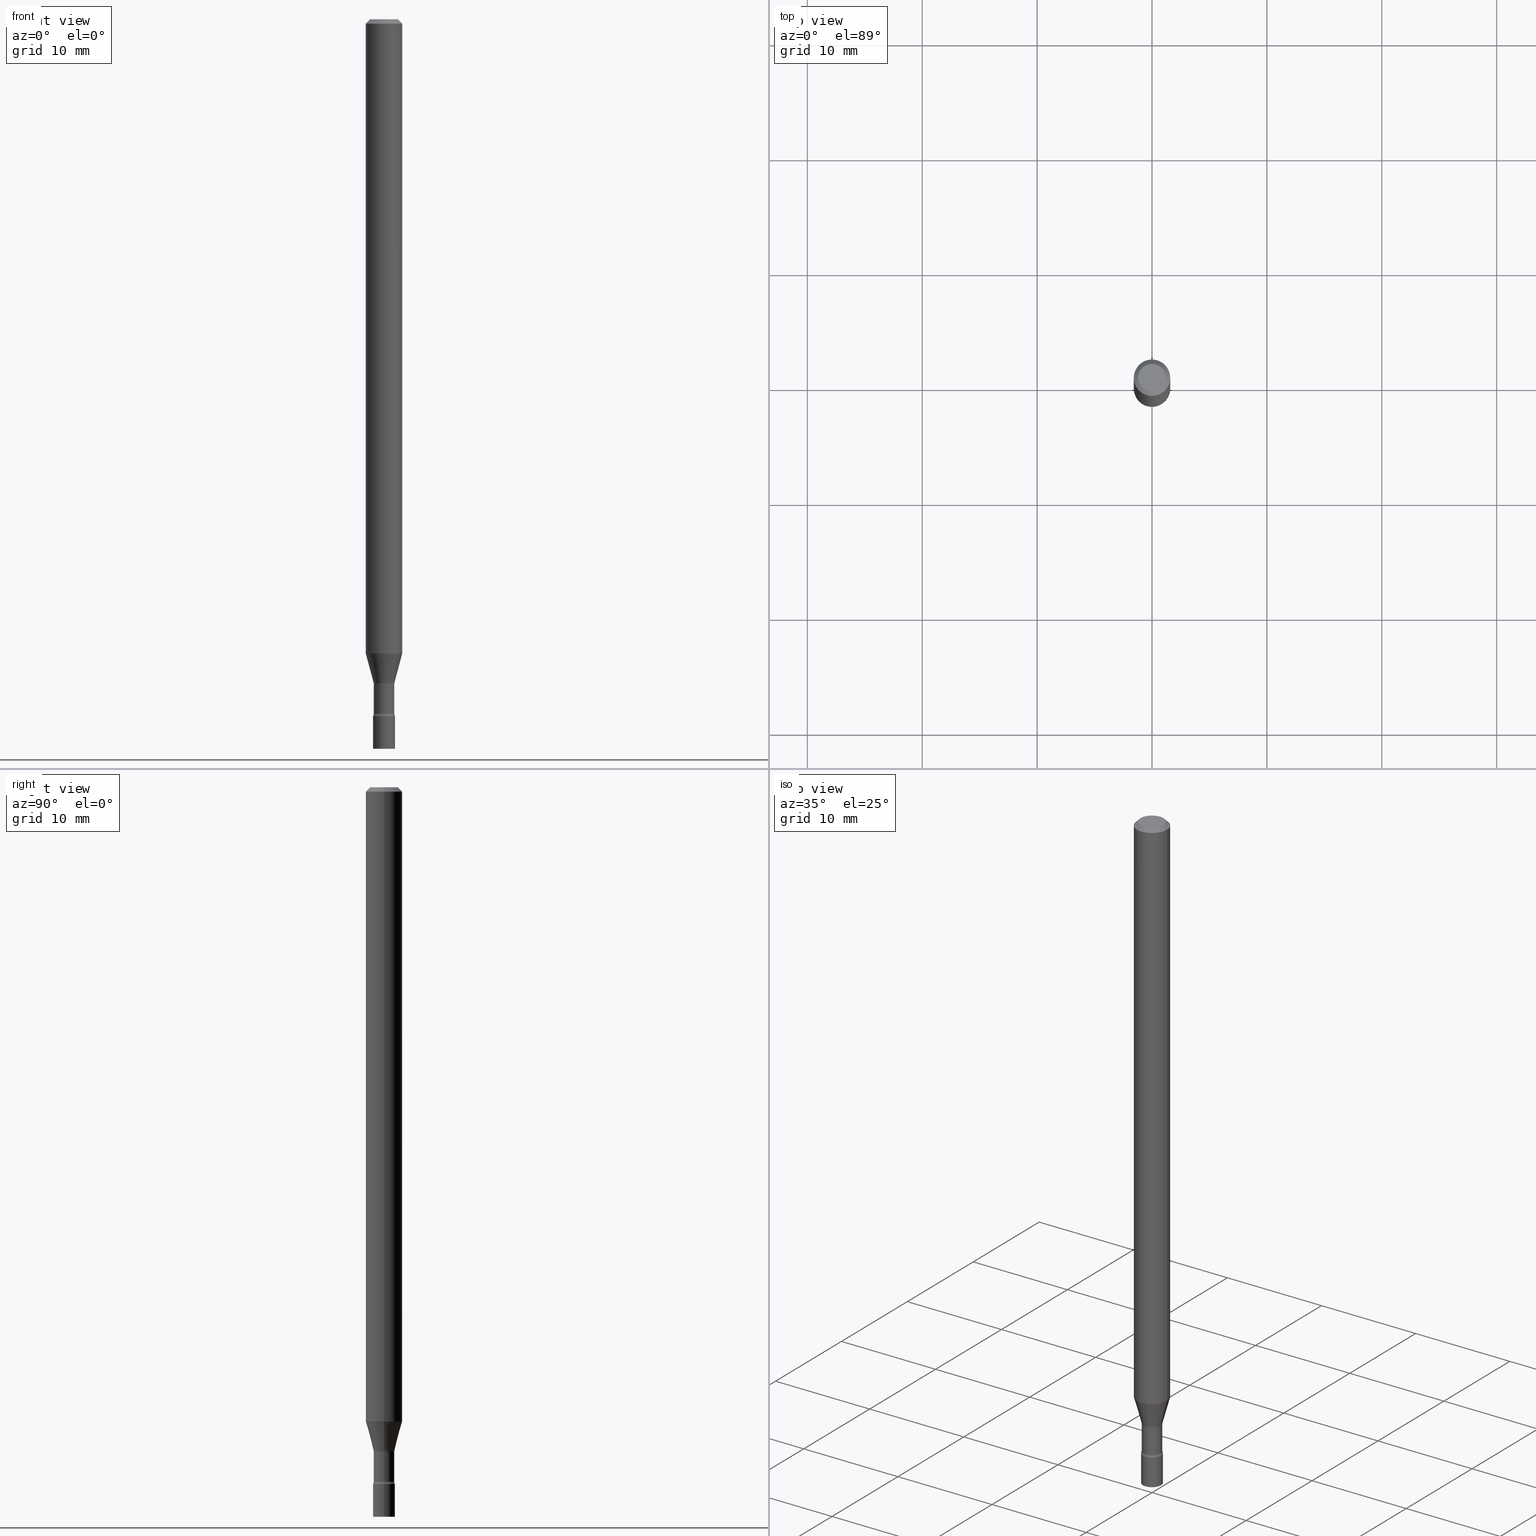
[diagram: canonical four-view strip — front | top / right | iso, engineering-drawing reading convention]
A machine part, canonical four-view strip (front | top / right | iso — engineering-drawing reading convention). The complete STEP part file that produces these views, byte-faithful:
ISO-10303-21;
HEADER;
FILE_DESCRIPTION (( 'STEP AP203' ),
    '1' );
FILE_NAME ('09711.STEP',
    '2024-03-09T01:07:42',
    ( '' ),
    ( '' ),
    'SwSTEP 2.0',
    'SolidWorks 2023',
    '' );
FILE_SCHEMA (( 'CONFIG_CONTROL_DESIGN' ));
ENDSEC;

DATA;
#1 = EDGE_LOOP ( 'NONE', ( #316, #468, #152, #80 ) ) ;
#2 = CIRCLE ( 'NONE', #319, 0.03525000000000000355 ) ;
#3 = AXIS2_PLACEMENT_3D ( 'NONE', #133, #485, #276 ) ;
#4 = CIRCLE ( 'NONE', #489, 0.03749999999999999861 ) ;
#5 = EDGE_CURVE ( 'NONE', #431, #34, #235, .T. ) ;
#6 = ORIENTED_EDGE ( 'NONE', *, *, #89, .F. ) ;
#7 = DIRECTION ( 'NONE',  ( 2.438088387897960049E-29, -3.491481338843145188E-15, -1.000000000000000000 ) ) ;
#8 = ORIENTED_EDGE ( 'NONE', *, *, #185, .T. ) ;
#9 = CIRCLE ( 'NONE', #187, 0.06250000000000000000 ) ;
#10 = LOCAL_TIME ( 20, 7, 42.00000000000000000, #193 ) ;
#11 = CC_DESIGN_PERSON_AND_ORGANIZATION_ASSIGNMENT ( #15, #317, ( #437 ) ) ;
#12 = COORDINATED_UNIVERSAL_TIME_OFFSET ( 5, 0, .BEHIND. ) ;
#13 = DIRECTION ( 'NONE',  ( 0.2588190451025211836, 1.565188264969622559E-15, 0.9659258262890679791 ) ) ;
#14 = ORIENTED_EDGE ( 'NONE', *, *, #42, .T. ) ;
#15 = PERSON_AND_ORGANIZATION ( #356, #18 ) ;
#16 = DIRECTION ( 'NONE',  ( -6.982962677686266711E-15, -1.000000000000000000, 3.491481338843145583E-15 ) ) ;
#17 = AXIS2_PLACEMENT_3D ( 'NONE', #140, #20, #491 ) ;
#18 = ORGANIZATION ( 'UNSPECIFIED', 'UNSPECIFIED', '' ) ;
#19 = ADVANCED_FACE ( 'NONE', ( #273 ), #368, .F. ) ;
#20 = DIRECTION ( 'NONE',  ( -2.445468806185136597E-29, 3.491481338843145583E-15, 1.000000000000000000 ) ) ;
#21 = FACE_OUTER_BOUND ( 'NONE', #465, .T. ) ;
#22 = FACE_OUTER_BOUND ( 'NONE', #335, .T. ) ;
#23 = CARTESIAN_POINT ( 'NONE',  ( 0.000000000000000000, 0.000000000000000000, 0.000000000000000000 ) ) ;
#24 = CARTESIAN_POINT ( 'NONE',  ( 5.558776806694110518E-29, -7.936460051454546286E-15, -2.273092501787273623 ) ) ;
#25 = FACE_OUTER_BOUND ( 'NONE', #166, .T. ) ;
#26 = ORIENTED_EDGE ( 'NONE', *, *, #255, .T. ) ;
#27 = DIRECTION ( 'NONE',  ( -2.445468806185136597E-29, 3.491481338843145583E-15, 1.000000000000000000 ) ) ;
#28 = PRODUCT_DEFINITION ( 'UNKNOWN', '', #112, #52 ) ;
#29 = AXIS2_PLACEMENT_3D ( 'NONE', #492, #16, #186 ) ;
#30 = APPROVAL_PERSON_ORGANIZATION ( #280, #473, #439 ) ;
#31 = DIRECTION ( 'NONE',  ( 1.000000000000000000, -6.982962677686265922E-15, 4.876176775795935793E-29 ) ) ;
#32 = PERSON_AND_ORGANIZATION_ROLE ( 'classification_officer' ) ;
#33 = DIRECTION ( 'NONE',  ( -2.445468806185136597E-29, 3.491481338843145583E-15, 1.000000000000000000 ) ) ;
#34 = VERTEX_POINT ( 'NONE', #82 ) ;
#35 = CARTESIAN_POINT ( 'NONE',  ( 0.03749999999999999861, -8.990564447521099944E-15, -2.500000000000000000 ) ) ;
#36 = ORIENTED_EDGE ( 'NONE', *, *, #395, .F. ) ;
#37 = EDGE_CURVE ( 'NONE', #363, #461, #93, .T. ) ;
#38 = CONICAL_SURFACE ( 'NONE', #259, 0.03576111260566390559, 0.2617993877991499074 ) ;
#39 = VERTEX_POINT ( 'NONE', #394 ) ;
#40 = VECTOR ( 'NONE', #329, 39.37007874015748143 ) ;
#41 = CARTESIAN_POINT ( 'NONE',  ( 5.314741307121726044E-29, -7.588042034174085279E-15, -2.173301615493748784 ) ) ;
#42 = EDGE_CURVE ( 'NONE', #268, #34, #44, .T. ) ;
#43 = EDGE_LOOP ( 'NONE', ( #380, #221, #158, #264 ) ) ;
#44 = LINE ( 'NONE', #170, #258 ) ;
#45 = DIRECTION ( 'NONE',  ( 1.000000000000000000, -6.982962677686268288E-15, 0.000000000000000000 ) ) ;
#46 = CIRCLE ( 'NONE', #325, 0.03749999999999999861 ) ;
#47 = DIRECTION ( 'NONE',  ( 1.000000000000000000, -6.982962677686262766E-15, 0.000000000000000000 ) ) ;
#48 = AXIS2_PLACEMENT_3D ( 'NONE', #456, #422, #384 ) ;
#49 = AXIS2_PLACEMENT_3D ( 'NONE', #480, #169, #396 ) ;
#50 = LENGTH_MEASURE_WITH_UNIT ( LENGTH_MEASURE( 0.02539999999999999897 ), #393 );
#51 = LINE ( 'NONE', #86, #328 ) ;
#52 = DESIGN_CONTEXT ( 'detailed design', #322, 'design' ) ;
#53 = FACE_OUTER_BOUND ( 'NONE', #305, .T. ) ;
#54 = APPROVAL_STATUS ( 'not_yet_approved' ) ;
#55 = PERSON_AND_ORGANIZATION_ROLE ( 'creator' ) ;
#56 = CIRCLE ( 'NONE', #29, 0.01500000000000001853 ) ;
#57 = DIRECTION ( 'NONE',  ( 7.105427357601001859E-15, 1.000000000000000000, -3.491481338843145583E-15 ) ) ;
#58 = EDGE_CURVE ( 'NONE', #386, #517, #46, .T. ) ;
#59 = CONICAL_SURFACE ( 'NONE', #84, 0.03576111260566390559, 0.2617993877991499074 ) ;
#60 = CARTESIAN_POINT ( 'NONE',  ( -0.04749999999999999362, 3.578768372314209027E-16, -2.891391092787141902E-17 ) ) ;
#61 = MANIFOLD_SOLID_BREP ( 'Body-Move/Copy2[2]', #126 ) ;
#62 = ORIENTED_EDGE ( 'NONE', *, *, #371, .F. ) ;
#63 = DIRECTION ( 'NONE',  ( -2.445468806185136597E-29, 3.491481338843145583E-15, 1.000000000000000000 ) ) ;
#64 = EDGE_CURVE ( 'NONE', #431, #348, #390, .T. ) ;
#65 = AXIS2_PLACEMENT_3D ( 'NONE', #263, #450, #419 ) ;
#66 = AXIS2_PLACEMENT_3D ( 'NONE', #188, #338, #504 ) ;
#67 = DIRECTION ( 'NONE',  ( -2.445468806185136877E-29, 3.491481338843145188E-15, 1.000000000000000000 ) ) ;
#68 = ORIENTED_EDGE ( 'NONE', *, *, #194, .T. ) ;
#69 = EDGE_LOOP ( 'NONE', ( #107, #256 ) ) ;
#70 = CYLINDRICAL_SURFACE ( 'NONE', #17, 0.03749999999999999861 ) ;
#71 = CARTESIAN_POINT ( 'NONE',  ( 0.03749999999999999861, -8.596027056231822783E-15, -2.387000000000000011 ) ) ;
#72 = ORIENTED_EDGE ( 'NONE', *, *, #218, .T. ) ;
#73 = EDGE_CURVE ( 'NONE', #161, #431, #357, .T. ) ;
#74 = DIRECTION ( 'NONE',  ( -1.000000000000000000, 7.105427357600974249E-15, 0.000000000000000000 ) ) ;
#75 = TOROIDAL_SURFACE ( 'NONE', #469, 0.05025000000000001688, 0.01500000000000003414 ) ;
#76 = ORIENTED_EDGE ( 'NONE', *, *, #371, .T. ) ;
#77 = CARTESIAN_POINT ( 'NONE',  ( 5.818010580909894890E-29, -8.306577176965639319E-15, -2.379098259685360262 ) ) ;
#78 = EDGE_LOOP ( 'NONE', ( #358, #270, #181, #257 ) ) ;
#79 = LINE ( 'NONE', #81, #442 ) ;
#80 = ORIENTED_EDGE ( 'NONE', *, *, #64, .F. ) ;
#81 = CARTESIAN_POINT ( 'NONE',  ( 0.03576111260566390559, -8.186178566092432225E-15, -2.273092501787273623 ) ) ;
#82 = CARTESIAN_POINT ( 'NONE',  ( -0.06250000000000000000, -3.376117917278303760E-15, -0.01500000000000003067 ) ) ;
#83 = AXIS2_PLACEMENT_3D ( 'NONE', #290, #145, #192 ) ;
#84 = AXIS2_PLACEMENT_3D ( 'NONE', #24, #410, #505 ) ;
#85 = CARTESIAN_POINT ( 'NONE',  ( -0.03749999999999999861, -8.264981125553189739E-15, -2.387000000000000011 ) ) ;
#86 = CARTESIAN_POINT ( 'NONE',  ( 0.03749999999999999861, -2.618611004132350016E-16, 1.828566290923475922E-30 ) ) ;
#87 = CC_DESIGN_PERSON_AND_ORGANIZATION_ASSIGNMENT ( #496, #32, ( #286 ) ) ;
#88 = FACE_OUTER_BOUND ( 'NONE', #302, .T. ) ;
#89 = EDGE_CURVE ( 'NONE', #453, #386, #51, .T. ) ;
#90 = DIRECTION ( 'NONE',  ( -2.445468806185136597E-29, 3.491481338843145583E-15, 1.000000000000000000 ) ) ;
#91 = CARTESIAN_POINT ( 'NONE',  ( -0.03524999999999998967, 2.504663143554352422E-16, -1.733924619314853852E-30 ) ) ;
#92 = ADVANCED_FACE ( 'NONE', ( #53 ), #320, .T. ) ;
#93 = CIRCLE ( 'NONE', #156, 0.03524999999999997580 ) ;
#94 = LOCAL_TIME ( 20, 7, 42.00000000000000000, #300 ) ;
#95 = CARTESIAN_POINT ( 'NONE',  ( 3.668203209277712094E-31, -5.237222008264728876E-17, -0.01500000000000003067 ) ) ;
#96 = CARTESIAN_POINT ( 'NONE',  ( 0.04749999999999999362, -4.035134999187579609E-16, -2.891391092786643933E-17 ) ) ;
#97 = TOROIDAL_SURFACE ( 'NONE', #48, 0.05024999999999999606, 0.01500000000000002200 ) ;
#98 = CALENDAR_DATE ( 2024, 8, 3 ) ;
#99 = DIRECTION ( 'NONE',  ( -2.445468806185136597E-29, 3.491481338843145583E-15, 1.000000000000000000 ) ) ;
#100 = CALENDAR_DATE ( 2024, 8, 3 ) ;
#101 = PLANE ( 'NONE',  #224 ) ;
#102 = ORIENTED_EDGE ( 'NONE', *, *, #284, .T. ) ;
#103 = ORIENTED_EDGE ( 'NONE', *, *, #326, .F. ) ;
#104 = CARTESIAN_POINT ( 'NONE',  ( 6.113672015462842613E-29, -8.728703347107864943E-15, -2.500000000000000000 ) ) ;
#105 = CARTESIAN_POINT ( 'NONE',  ( 0.03750000000000001943, -8.596027056231822783E-15, -2.387000000000000011 ) ) ;
#106 = VERTEX_POINT ( 'NONE', #519 ) ;
#107 = ORIENTED_EDGE ( 'NONE', *, *, #58, .T. ) ;
#108 = LINE ( 'NONE', #179, #40 ) ;
#109 = CYLINDRICAL_SURFACE ( 'NONE', #446, 0.03749999999999999861 ) ;
#110 = DIRECTION ( 'NONE',  ( -2.445468806185136597E-29, 3.491481338843145583E-15, 1.000000000000000000 ) ) ;
#111 = VECTOR ( 'NONE', #294, 39.37007874015748143 ) ;
#112 = PRODUCT_DEFINITION_FORMATION_WITH_SPECIFIED_SOURCE ( 'ANY', '', #437, .NOT_KNOWN. ) ;
#113 = FACE_OUTER_BOUND ( 'NONE', #490, .T. ) ;
#114 = ORIENTED_EDGE ( 'NONE', *, *, #451, .F. ) ;
#115 = CARTESIAN_POINT ( 'NONE',  ( -0.03576111260566390559, -7.413157443966016750E-15, -2.273092501787273623 ) ) ;
#116 = DIRECTION ( 'NONE',  ( 7.105427357601001859E-15, 1.000000000000000000, -3.491481338843145583E-15 ) ) ;
#117 = ORIENTED_EDGE ( 'NONE', *, *, #272, .T. ) ;
#118 = CIRCLE ( 'NONE', #314, 0.04749999999999999362 ) ;
#119 = ORIENTED_EDGE ( 'NONE', *, *, #388, .T. ) ;
#120 = DIRECTION ( 'NONE',  ( 1.000000000000000000, -6.982962677686259611E-15, 0.000000000000000000 ) ) ;
#121 = PLANE ( 'NONE',  #180 ) ;
#122 = DIRECTION ( 'NONE',  ( 1.000000000000000000, -6.982962677686266711E-15, 4.876176775795935793E-29 ) ) ;
#123 = DIRECTION ( 'NONE',  ( -2.445468806185136597E-29, 3.491481338843145583E-15, 1.000000000000000000 ) ) ;
#124 = DIRECTION ( 'NONE',  ( -2.445468806185136597E-29, 3.491481338843145583E-15, 1.000000000000000000 ) ) ;
#125 = CARTESIAN_POINT ( 'NONE',  ( -0.03576111260566390559, -7.682362063608012416E-15, -2.273092501787273623 ) ) ;
#126 = CLOSED_SHELL ( 'NONE', ( #408, #466, #19, #382, #92, #129, #432, #347, #243, #484, #214, #201, #157, #175 ) ) ;
#127 = DIRECTION ( 'NONE',  ( -2.445468806185136877E-29, 3.491481338843145188E-15, 1.000000000000000000 ) ) ;
#128 = CIRCLE ( 'NONE', #440, 0.01500000000000003587 ) ;
#129 = ADVANCED_FACE ( 'NONE', ( #344 ), #38, .T. ) ;
#130 = DIRECTION ( 'NONE',  ( -2.445468806185136597E-29, 3.491481338843145583E-15, 1.000000000000000000 ) ) ;
#131 = EDGE_CURVE ( 'NONE', #372, #106, #2, .T. ) ;
#132 = VERTEX_POINT ( 'NONE', #507 ) ;
#133 = CARTESIAN_POINT ( 'NONE',  ( 0.000000000000000000, 0.000000000000000000, 0.000000000000000000 ) ) ;
#134 = ORIENTED_EDGE ( 'NONE', *, *, #222, .T. ) ;
#135 = PLANE ( 'NONE',  #178 ) ;
#136 = DIRECTION ( 'NONE',  ( 1.000000000000000000, -6.982962677686268288E-15, 0.000000000000000000 ) ) ;
#137 = FACE_OUTER_BOUND ( 'NONE', #1, .T. ) ;
#138 = PERSON_AND_ORGANIZATION ( #356, #18 ) ;
#139 = APPROVAL ( #337, 'UNSPECIFIED' ) ;
#140 = CARTESIAN_POINT ( 'NONE',  ( 0.000000000000000000, 0.000000000000000000, 0.000000000000000000 ) ) ;
#141 = ORIENTED_EDGE ( 'NONE', *, *, #194, .F. ) ;
#142 = CARTESIAN_POINT ( 'NONE',  ( 0.06250000000000000000, -4.811533449433680977E-16, -0.01500000000000003067 ) ) ;
#143 = AXIS2_PLACEMENT_3D ( 'NONE', #327, #369, #373 ) ;
#144 = CC_DESIGN_APPROVAL ( #473, ( #28 ) ) ;
#145 = DIRECTION ( 'NONE',  ( -2.445468806185136597E-29, 3.491481338843145583E-15, 1.000000000000000000 ) ) ;
#146 = ORIENTED_EDGE ( 'NONE', *, *, #436, .F. ) ;
#147 = CARTESIAN_POINT ( 'NONE',  ( -0.06250000000000000000, -7.143952824324022663E-15, -2.173301615493748784 ) ) ;
#148 = CARTESIAN_POINT ( 'NONE',  ( 5.558776806694110518E-29, -7.936460051454546286E-15, -2.273092501787273623 ) ) ;
#149 = PERSON_AND_ORGANIZATION_ROLE ( 'design_supplier' ) ;
#150 = CYLINDRICAL_SURFACE ( 'NONE', #427, 0.06250000000000000000 ) ;
#151 = EDGE_LOOP ( 'NONE', ( #230, #414, #164, #289 ) ) ;
#152 = ORIENTED_EDGE ( 'NONE', *, *, #518, .T. ) ;
#153 = DIRECTION ( 'NONE',  ( -2.445468806185136597E-29, 3.491481338843145583E-15, 1.000000000000000000 ) ) ;
#154 = DATE_AND_TIME ( #184, #10 ) ;
#155 = CIRCLE ( 'NONE', #231, 0.03524999999999997580 ) ;
#156 = AXIS2_PLACEMENT_3D ( 'NONE', #234, #435, #387 ) ;
#157 = ADVANCED_FACE ( 'NONE', ( #113 ), #516, .T. ) ;
#158 = ORIENTED_EDGE ( 'NONE', *, *, #185, .F. ) ;
#159 = DIRECTION ( 'NONE',  ( 1.000000000000000000, -6.982962677686266711E-15, 0.000000000000000000 ) ) ;
#160 = CARTESIAN_POINT ( 'NONE',  ( 5.568270815212782140E-29, -7.950014979446236084E-15, -2.276974787463811545 ) ) ;
#161 = VERTEX_POINT ( 'NONE', #115 ) ;
#162 = CARTESIAN_POINT ( 'NONE',  ( -0.03524999999999997580, -8.061911646259376779E-15, -2.379098259685360262 ) ) ;
#163 = VECTOR ( 'NONE', #324, 39.37007874015748143 ) ;
#164 = ORIENTED_EDGE ( 'NONE', *, *, #172, .T. ) ;
#165 = AXIS2_PLACEMENT_3D ( 'NONE', #301, #57, #367 ) ;
#166 = EDGE_LOOP ( 'NONE', ( #134, #464, #310, #6 ) ) ;
#167 = ADVANCED_FACE ( 'NONE', ( #460 ), #262, .T. ) ;
#168 = ORIENTED_EDGE ( 'NONE', *, *, #37, .T. ) ;
#169 = DIRECTION ( 'NONE',  ( -2.445468806185136597E-29, 3.491481338843145583E-15, 1.000000000000000000 ) ) ;
#170 = CARTESIAN_POINT ( 'NONE',  ( -0.06250000000000000000, 3.840629472727443437E-16, -0.01500000000000003067 ) ) ;
#171 = AXIS2_PLACEMENT_3D ( 'NONE', #249, #63, #45 ) ;
#172 = EDGE_CURVE ( 'NONE', #39, #34, #9, .T. ) ;
#173 = APPROVAL_PERSON_ORGANIZATION ( #138, #139, #503 ) ;
#174 = ORIENTED_EDGE ( 'NONE', *, *, #190, .F. ) ;
#175 = ADVANCED_FACE ( 'NONE', ( #267 ), #97, .F. ) ;
#176 = ORIENTED_EDGE ( 'NONE', *, *, #418, .T. ) ;
#177 = LINE ( 'NONE', #91, #163 ) ;
#178 = AXIS2_PLACEMENT_3D ( 'NONE', #487, #493, #403 ) ;
#179 = CARTESIAN_POINT ( 'NONE',  ( -0.03749999999999999861, 2.664535259100375598E-16, -1.844600658845589458E-30 ) ) ;
#180 = AXIS2_PLACEMENT_3D ( 'NONE', #278, #7, #271 ) ;
#181 = ORIENTED_EDGE ( 'NONE', *, *, #326, .T. ) ;
#182 = DIRECTION ( 'NONE',  ( 1.000000000000000000, -6.982962677686267499E-15, 4.883557194083112901E-29 ) ) ;
#183 = CARTESIAN_POINT ( 'NONE',  ( 5.558776806694110518E-29, -7.936460051454546286E-15, -2.273092501787273623 ) ) ;
#184 = CALENDAR_DATE ( 2024, 8, 3 ) ;
#185 = EDGE_CURVE ( 'NONE', #348, #431, #209, .T. ) ;
#186 = DIRECTION ( 'NONE',  ( 1.000000000000000000, -6.982962677686259611E-15, 0.000000000000000000 ) ) ;
#187 = AXIS2_PLACEMENT_3D ( 'NONE', #411, #27, #159 ) ;
#188 = CARTESIAN_POINT ( 'NONE',  ( 0.000000000000000000, 0.000000000000000000, 0.000000000000000000 ) ) ;
#189 = DIRECTION ( 'NONE',  ( -6.982962677686266711E-15, -1.000000000000000000, 3.491481338843145583E-15 ) ) ;
#190 = EDGE_CURVE ( 'NONE', #461, #363, #155, .T. ) ;
#191 = DATE_AND_TIME ( #100, #244 ) ;
#192 = DIRECTION ( 'NONE',  ( 1.000000000000000000, -6.982962677686259611E-15, 0.000000000000000000 ) ) ;
#193 = COORDINATED_UNIVERSAL_TIME_OFFSET ( 5, 0, .BEHIND. ) ;
#194 = EDGE_CURVE ( 'NONE', #361, #453, #293, .T. ) ;
#195 = CARTESIAN_POINT ( 'NONE',  ( 3.668203209277712094E-31, -5.237222008264728876E-17, -0.01500000000000003067 ) ) ;
#196 = PRODUCT_DEFINITION_SHAPE ( 'NONE', 'NONE',  #28 ) ;
#197 = EDGE_LOOP ( 'NONE', ( #360, #514, #498, #62 ) ) ;
#198 = ORIENTED_EDGE ( 'NONE', *, *, #131, .T. ) ;
#199 = DIRECTION ( 'NONE',  ( -2.445468806185136597E-29, 3.491481338843145583E-15, 1.000000000000000000 ) ) ;
#200 = DIRECTION ( 'NONE',  ( -0.7071067811865475727, 2.468850131082257455E-15, -0.7071067811865474617 ) ) ;
#201 = ADVANCED_FACE ( 'NONE', ( #88 ), #75, .F. ) ;
#202 = CIRCLE ( 'NONE', #375, 0.01500000000000003587 ) ;
#203 = ORIENTED_EDGE ( 'NONE', *, *, #398, .F. ) ;
#204 = PRODUCT_RELATED_PRODUCT_CATEGORY ( 'detail', '', ( #437 ) ) ;
#205 = DIRECTION ( 'NONE',  ( 1.000000000000000000, -6.982962677686268288E-15, 0.000000000000000000 ) ) ;
#206 = EDGE_CURVE ( 'NONE', #363, #106, #177, .T. ) ;
#207 =( CONVERSION_BASED_UNIT ( 'INCH', #50 ) LENGTH_UNIT ( ) NAMED_UNIT ( #365 ) );
#208 = CARTESIAN_POINT ( 'NONE',  ( 0.000000000000000000, 0.000000000000000000, 0.000000000000000000 ) ) ;
#209 = CIRCLE ( 'NONE', #354, 0.06250000000000000000 ) ;
#210 = CARTESIAN_POINT ( 'NONE',  ( 5.837334040363921048E-29, -8.334165955818587781E-15, -2.387000000000000011 ) ) ;
#211 = DIRECTION ( 'NONE',  ( 1.000000000000000000, -6.982962677686267499E-15, 4.876681293081646444E-29 ) ) ;
#212 = CARTESIAN_POINT ( 'NONE',  ( 0.05025000000000001688, -8.657471051519373369E-15, -2.379098259685360262 ) ) ;
#213 = LOCAL_TIME ( 20, 7, 42.00000000000000000, #12 ) ;
#214 = ADVANCED_FACE ( 'NONE', ( #332 ), #135, .F. ) ;
#215 = CYLINDRICAL_SURFACE ( 'NONE', #66, 0.03524999999999998967 ) ;
#216 = CARTESIAN_POINT ( 'NONE',  ( 5.837334040363921048E-29, -8.334165955818587781E-15, -2.387000000000000011 ) ) ;
#217 = ORIENTED_EDGE ( 'NONE', *, *, #395, .T. ) ;
#218 = EDGE_CURVE ( 'NONE', #461, #311, #202, .T. ) ;
#219 = APPROVAL_DATE_TIME ( #154, #139 ) ;
#220 = CARTESIAN_POINT ( 'NONE',  ( 5.837334040363921048E-29, -8.334165955818587781E-15, -2.387000000000000011 ) ) ;
#221 = ORIENTED_EDGE ( 'NONE', *, *, #73, .T. ) ;
#222 = EDGE_CURVE ( 'NONE', #453, #361, #441, .T. ) ;
#223 = FACE_OUTER_BOUND ( 'NONE', #454, .T. ) ;
#224 = AXIS2_PLACEMENT_3D ( 'NONE', #216, #254, #31 ) ;
#225 = DATE_TIME_ROLE ( 'classification_date' ) ;
#226 = DIRECTION ( 'NONE',  ( -2.445468806185136597E-29, 3.491481338843145583E-15, 1.000000000000000000 ) ) ;
#227 = DIRECTION ( 'NONE',  ( 1.000000000000000000, -6.982962677686262766E-15, 0.000000000000000000 ) ) ;
#228 = PERSON_AND_ORGANIZATION ( #356, #18 ) ;
#229 = DIRECTION ( 'NONE',  ( -2.445468806185136597E-29, 3.491481338843145583E-15, 1.000000000000000000 ) ) ;
#230 = ORIENTED_EDGE ( 'NONE', *, *, #520, .F. ) ;
#231 = AXIS2_PLACEMENT_3D ( 'NONE', #349, #313, #467 ) ;
#232 =( GEOMETRIC_REPRESENTATION_CONTEXT ( 3 ) GLOBAL_UNCERTAINTY_ASSIGNED_CONTEXT ( ( #397 ) ) GLOBAL_UNIT_ASSIGNED_CONTEXT ( ( #207, #474, #362 ) ) REPRESENTATION_CONTEXT ( 'NONE', 'WORKASPACE' ) );
#233 = ADVANCED_FACE ( 'NONE', ( #223 ), #109, .T. ) ;
#234 = CARTESIAN_POINT ( 'NONE',  ( 5.818010580909893769E-29, -8.306577176965637742E-15, -2.379098259685360262 ) ) ;
#235 = LINE ( 'NONE', #321, #242 ) ;
#236 = VECTOR ( 'NONE', #275, 39.37007874015748854 ) ;
#237 = CIRCLE ( 'NONE', #400, 0.03749999999999999861 ) ;
#238 = CIRCLE ( 'NONE', #470, 0.03576111260566390559 ) ;
#239 = DIRECTION ( 'NONE',  ( 1.000000000000000000, -6.982962677686264344E-15, 4.883557194083111780E-29 ) ) ;
#240 = ORIENTED_EDGE ( 'NONE', *, *, #255, .F. ) ;
#241 = COORDINATED_UNIVERSAL_TIME_OFFSET ( 5, 0, .BEHIND. ) ;
#242 = VECTOR ( 'NONE', #479, 39.37007874015748143 ) ;
#243 = ADVANCED_FACE ( 'NONE', ( #303 ), #366, .T. ) ;
#244 = LOCAL_TIME ( 20, 7, 42.00000000000000000, #247 ) ;
#245 = EDGE_CURVE ( 'NONE', #438, #39, #495, .T. ) ;
#246 = CIRCLE ( 'NONE', #143, 0.03525000000000000355 ) ;
#247 = COORDINATED_UNIVERSAL_TIME_OFFSET ( 5, 0, .BEHIND. ) ;
#248 = CARTESIAN_POINT ( 'NONE',  ( 5.837334040363921048E-29, -8.334165955818587781E-15, -2.387000000000000011 ) ) ;
#249 = CARTESIAN_POINT ( 'NONE',  ( 6.113672015462842613E-29, -8.728703347107864943E-15, -2.500000000000000000 ) ) ;
#250 = PERSON_AND_ORGANIZATION ( #356, #18 ) ;
#251 = DIRECTION ( 'NONE',  ( 1.000000000000000000, -6.982962677686268288E-15, 0.000000000000000000 ) ) ;
#252 = CARTESIAN_POINT ( 'NONE',  ( 0.000000000000000000, 0.000000000000000000, 0.000000000000000000 ) ) ;
#253 = CALENDAR_DATE ( 2024, 8, 3 ) ;
#254 = DIRECTION ( 'NONE',  ( -2.438088387897960049E-29, 3.491481338843145188E-15, 1.000000000000000000 ) ) ;
#255 = EDGE_CURVE ( 'NONE', #311, #462, #433, .T. ) ;
#256 = ORIENTED_EDGE ( 'NONE', *, *, #501, .T. ) ;
#257 = ORIENTED_EDGE ( 'NONE', *, *, #284, .F. ) ;
#258 = VECTOR ( 'NONE', #200, 39.37007874015748143 ) ;
#259 = AXIS2_PLACEMENT_3D ( 'NONE', #148, #153, #308 ) ;
#260 = DIRECTION ( 'NONE',  ( 2.445468806185136597E-29, -3.491481338843145583E-15, -1.000000000000000000 ) ) ;
#261 = CIRCLE ( 'NONE', #49, 0.04749999999999999362 ) ;
#262 = PLANE ( 'NONE',  #65 ) ;
#263 = CARTESIAN_POINT ( 'NONE',  ( 2.618611004132960891E-16, 0.03749999999999126948, -2.500000000000000000 ) ) ;
#264 = ORIENTED_EDGE ( 'NONE', *, *, #518, .F. ) ;
#265 = ORIENTED_EDGE ( 'NONE', *, *, #418, .F. ) ;
#266 = ADVANCED_FACE ( 'NONE', ( #25 ), #70, .T. ) ;
#267 = FACE_OUTER_BOUND ( 'NONE', #291, .T. ) ;
#268 = VERTEX_POINT ( 'NONE', #60 ) ;
#269 = AXIS2_PLACEMENT_3D ( 'NONE', #406, #226, #182 ) ;
#270 = ORIENTED_EDGE ( 'NONE', *, *, #64, .T. ) ;
#271 = DIRECTION ( 'NONE',  ( -1.000000000000000000, 6.982962677686265922E-15, -4.876176775795935793E-29 ) ) ;
#272 = EDGE_CURVE ( 'NONE', #462, #311, #237, .T. ) ;
#273 = FACE_OUTER_BOUND ( 'NONE', #279, .T. ) ;
#274 = CARTESIAN_POINT ( 'NONE',  ( -0.03749999999999999861, -8.264981125553189739E-15, -2.500000000000000000 ) ) ;
#275 = DIRECTION ( 'NONE',  ( -0.2588190451025211836, 5.211531920934547886E-15, 0.9659258262890679791 ) ) ;
#276 = DIRECTION ( 'NONE',  ( 1.000000000000000000, 0.000000000000000000, 0.000000000000000000 ) ) ;
#277 = CIRCLE ( 'NONE', #346, 0.06250000000000000000 ) ;
#278 = CARTESIAN_POINT ( 'NONE',  ( 3.316907271900976096E-16, 0.04749999999999999362, -1.803023190589839165E-16 ) ) ;
#279 = EDGE_LOOP ( 'NONE', ( #449, #119, #117, #343 ) ) ;
#280 = PERSON_AND_ORGANIZATION ( #356, #18 ) ;
#281 = DIRECTION ( 'NONE',  ( 1.000000000000000000, -6.982962677686266711E-15, 4.876176775795935793E-29 ) ) ;
#282 = MECHANICAL_CONTEXT ( 'NONE', #296, 'mechanical' ) ;
#283 = EDGE_CURVE ( 'NONE', #161, #132, #306, .T. ) ;
#284 = EDGE_CURVE ( 'NONE', #34, #39, #277, .T. ) ;
#285 = AXIS2_PLACEMENT_3D ( 'NONE', #252, #199, #299 ) ;
#286 = SECURITY_CLASSIFICATION ( '', '', #333 ) ;
#287 = LOCAL_TIME ( 20, 7, 42.00000000000000000, #241 ) ;
#288 = CC_DESIGN_DATE_AND_TIME_ASSIGNMENT ( #304, #225, ( #286 ) ) ;
#289 = ORIENTED_EDGE ( 'NONE', *, *, #42, .F. ) ;
#290 = CARTESIAN_POINT ( 'NONE',  ( 5.558776806694110518E-29, -7.936460051454546286E-15, -2.273092501787273623 ) ) ;
#291 = EDGE_LOOP ( 'NONE', ( #297, #114, #176, #198 ) ) ;
#292 = CARTESIAN_POINT ( 'NONE',  ( 0.03524999999999997580, -8.552726611354078422E-15, -2.379098259685360262 ) ) ;
#293 = CIRCLE ( 'NONE', #171, 0.03749999999999999861 ) ;
#294 = DIRECTION ( 'NONE',  ( 0.7071067811865475727, -7.319954787623256045E-15, -0.7071067811865474617 ) ) ;
#295 = APPROVAL_STATUS ( 'not_yet_approved' ) ;
#296 = APPLICATION_CONTEXT ( 'configuration controlled 3d designs of mechanical parts and assemblies' ) ;
#297 = ORIENTED_EDGE ( 'NONE', *, *, #477, .F. ) ;
#298 = DIRECTION ( 'NONE',  ( 1.000000000000000000, -6.982962677686251722E-15, 0.000000000000000000 ) ) ;
#299 = DIRECTION ( 'NONE',  ( 1.000000000000000000, -6.982962677686266711E-15, 4.876176775795936353E-29 ) ) ;
#300 = COORDINATED_UNIVERSAL_TIME_OFFSET ( 5, 0, .BEHIND. ) ;
#301 = CARTESIAN_POINT ( 'NONE',  ( -0.05024999999999999606, -7.592967254726784832E-15, -2.276974787463811545 ) ) ;
#302 = EDGE_LOOP ( 'NONE', ( #510, #174, #72, #26 ) ) ;
#303 = FACE_OUTER_BOUND ( 'NONE', #345, .T. ) ;
#304 = DATE_AND_TIME ( #253, #94 ) ;
#305 = EDGE_LOOP ( 'NONE', ( #8, #413, #351, #103 ) ) ;
#306 = CIRCLE ( 'NONE', #83, 0.03576111260566390559 ) ;
#307 = APPROVAL_PERSON_ORGANIZATION ( #377, #426, #445 ) ;
#308 = DIRECTION ( 'NONE',  ( 1.000000000000000000, -6.982962677686259611E-15, 0.000000000000000000 ) ) ;
#309 = PERSON_AND_ORGANIZATION_ROLE ( 'creator' ) ;
#310 = ORIENTED_EDGE ( 'NONE', *, *, #58, .F. ) ;
#311 = VERTEX_POINT ( 'NONE', #105 ) ;
#312 = ADVANCED_FACE ( 'NONE', ( #374 ), #101, .T. ) ;
#313 = DIRECTION ( 'NONE',  ( -2.445468806185136597E-29, 3.491481338843145583E-15, 1.000000000000000000 ) ) ;
#314 = AXIS2_PLACEMENT_3D ( 'NONE', #385, #90, #211 ) ;
#315 = ORIENTED_EDGE ( 'NONE', *, *, #398, .T. ) ;
#316 = ORIENTED_EDGE ( 'NONE', *, *, #73, .F. ) ;
#317 = PERSON_AND_ORGANIZATION_ROLE ( 'design_owner' ) ;
#318 = APPLICATION_PROTOCOL_DEFINITION ( 'international standard', 'config_control_design', 1994, #322 ) ;
#319 = AXIS2_PLACEMENT_3D ( 'NONE', #160, #381, #502 ) ;
#320 = CYLINDRICAL_SURFACE ( 'NONE', #412, 0.06250000000000000000 ) ;
#321 = CARTESIAN_POINT ( 'NONE',  ( -0.06250000000000000000, 4.440892098500626162E-16, -3.074334431409316114E-30 ) ) ;
#322 = APPLICATION_CONTEXT ( 'configuration controlled 3d designs of mechanical parts and assemblies' ) ;
#323 = CARTESIAN_POINT ( 'NONE',  ( 5.818010580909894890E-29, -8.306577176965639319E-15, -2.379098259685360262 ) ) ;
#324 = DIRECTION ( 'NONE',  ( -2.445468806185136877E-29, 3.491481338843145188E-15, 1.000000000000000000 ) ) ;
#325 = AXIS2_PLACEMENT_3D ( 'NONE', #389, #429, #353 ) ;
#326 = EDGE_CURVE ( 'NONE', #348, #39, #339, .T. ) ;
#327 = CARTESIAN_POINT ( 'NONE',  ( 5.568270815212782140E-29, -7.950014979446236084E-15, -2.276974787463811545 ) ) ;
#328 = VECTOR ( 'NONE', #127, 39.37007874015748143 ) ;
#329 = DIRECTION ( 'NONE',  ( -2.445468806185136877E-29, 3.491481338843145188E-15, 1.000000000000000000 ) ) ;
#330 = DIRECTION ( 'NONE',  ( 1.000000000000000000, -6.982962677686264344E-15, 4.883557194083111780E-29 ) ) ;
#331 = ORIENTED_EDGE ( 'NONE', *, *, #477, .T. ) ;
#332 = FACE_OUTER_BOUND ( 'NONE', #481, .T. ) ;
#333 = SECURITY_CLASSIFICATION_LEVEL ( 'unclassified' ) ;
#334 = CC_DESIGN_PERSON_AND_ORGANIZATION_ASSIGNMENT ( #228, #309, ( #112 ) ) ;
#335 = EDGE_LOOP ( 'NONE', ( #217, #424 ) ) ;
#336 = VECTOR ( 'NONE', #67, 39.37007874015748143 ) ;
#337 = APPROVAL_STATUS ( 'not_yet_approved' ) ;
#338 = DIRECTION ( 'NONE',  ( -2.445468806185136597E-29, 3.491481338843145583E-15, 1.000000000000000000 ) ) ;
#339 = LINE ( 'NONE', #341, #336 ) ;
#340 = DIRECTION ( 'NONE',  ( -2.445468806185136597E-29, 3.491481338843145583E-15, 1.000000000000000000 ) ) ;
#341 = CARTESIAN_POINT ( 'NONE',  ( 0.06250000000000000000, -4.364351673553916694E-16, 3.047610484872459871E-30 ) ) ;
#342 = DIRECTION ( 'NONE',  ( 2.445468806185136597E-29, -3.491481338843145583E-15, -1.000000000000000000 ) ) ;
#343 = ORIENTED_EDGE ( 'NONE', *, *, #218, .F. ) ;
#344 = FACE_OUTER_BOUND ( 'NONE', #43, .T. ) ;
#345 = EDGE_LOOP ( 'NONE', ( #407, #36, #14, #102 ) ) ;
#346 = AXIS2_PLACEMENT_3D ( 'NONE', #95, #452, #448 ) ;
#347 = ADVANCED_FACE ( 'NONE', ( #370 ), #150, .T. ) ;
#348 = VERTEX_POINT ( 'NONE', #352 ) ;
#349 = CARTESIAN_POINT ( 'NONE',  ( 5.818010580909893769E-29, -8.306577176965637742E-15, -2.379098259685360262 ) ) ;
#350 = CARTESIAN_POINT ( 'NONE',  ( -0.05025000000000001688, -7.949529452246189645E-15, -2.379098259685360262 ) ) ;
#351 = ORIENTED_EDGE ( 'NONE', *, *, #172, .F. ) ;
#352 = CARTESIAN_POINT ( 'NONE',  ( 0.06250000000000000000, -8.024477201529475370E-15, -2.173301615493748784 ) ) ;
#353 = DIRECTION ( 'NONE',  ( 1.000000000000000000, -6.982962677686268288E-15, 0.000000000000000000 ) ) ;
#354 = AXIS2_PLACEMENT_3D ( 'NONE', #41, #110, #227 ) ;
#355 = CC_DESIGN_APPROVAL ( #426, ( #286 ) ) ;
#356 = PERSON ( 'UNSPECIFIED', 'UNSPECIFIED', 'UNSPECIFIED', ('UNSPECIFIED'), ('UNSPECIFIED'), ('UNSPECIFIED') ) ;
#357 = LINE ( 'NONE', #125, #236 ) ;
#358 = ORIENTED_EDGE ( 'NONE', *, *, #5, .F. ) ;
#359 = CC_DESIGN_DATE_AND_TIME_ASSIGNMENT ( #494, #511, ( #28 ) ) ;
#360 = ORIENTED_EDGE ( 'NONE', *, *, #190, .T. ) ;
#361 = VERTEX_POINT ( 'NONE', #274 ) ;
#362 =( NAMED_UNIT ( * ) SI_UNIT ( $, .STERADIAN. ) SOLID_ANGLE_UNIT ( ) );
#363 = VERTEX_POINT ( 'NONE', #162 ) ;
#364 = DATE_AND_TIME ( #482, #287 ) ;
#365 = DIMENSIONAL_EXPONENTS ( 1.000000000000000000, 0.000000000000000000, 0.000000000000000000, 0.000000000000000000, 0.000000000000000000, 0.000000000000000000, 0.000000000000000000 ) ;
#366 = CONICAL_SURFACE ( 'NONE', #488, 0.06250000000000000000, 0.7853981633974483900 ) ;
#367 = DIRECTION ( 'NONE',  ( -1.000000000000000000, 7.105427357600982137E-15, 0.000000000000000000 ) ) ;
#368 = TOROIDAL_SURFACE ( 'NONE', #425, 0.05025000000000001688, 0.01500000000000003414 ) ;
#369 = DIRECTION ( 'NONE',  ( -2.445468806185136597E-29, 3.491481338843145583E-15, 1.000000000000000000 ) ) ;
#370 = FACE_OUTER_BOUND ( 'NONE', #78, .T. ) ;
#371 = EDGE_CURVE ( 'NONE', #461, #372, #383, .T. ) ;
#372 = VERTEX_POINT ( 'NONE', #428 ) ;
#373 = DIRECTION ( 'NONE',  ( 1.000000000000000000, -6.982962677686269866E-15, 0.000000000000000000 ) ) ;
#374 = FACE_OUTER_BOUND ( 'NONE', #69, .T. ) ;
#375 = AXIS2_PLACEMENT_3D ( 'NONE', #212, #189, #298 ) ;
#376 = CARTESIAN_POINT ( 'NONE',  ( 0.000000000000000000, 0.000000000000000000, 0.000000000000000000 ) ) ;
#377 = PERSON_AND_ORGANIZATION ( #356, #18 ) ;
#378 = CC_DESIGN_PERSON_AND_ORGANIZATION_ASSIGNMENT ( #250, #149, ( #112 ) ) ;
#379 = FACE_OUTER_BOUND ( 'NONE', #151, .T. ) ;
#380 = ORIENTED_EDGE ( 'NONE', *, *, #451, .T. ) ;
#381 = DIRECTION ( 'NONE',  ( -2.445468806185136597E-29, 3.491481338843145583E-15, 1.000000000000000000 ) ) ;
#382 = ADVANCED_FACE ( 'NONE', ( #379 ), #405, .T. ) ;
#383 = LINE ( 'NONE', #430, #513 ) ;
#384 = DIRECTION ( 'NONE',  ( 1.000000000000000000, -6.982962677686267499E-15, 4.883557194083112901E-29 ) ) ;
#385 = CARTESIAN_POINT ( 'NONE',  ( 7.070806723891919892E-46, -1.009523804376275404E-31, -2.891391092786900929E-17 ) ) ;
#386 = VERTEX_POINT ( 'NONE', #71 ) ;
#387 = DIRECTION ( 'NONE',  ( 1.000000000000000000, -6.982962677686275388E-15, 0.000000000000000000 ) ) ;
#388 = EDGE_CURVE ( 'NONE', #363, #462, #128, .T. ) ;
#389 = CARTESIAN_POINT ( 'NONE',  ( 5.837334040363921048E-29, -8.334165955818587781E-15, -2.387000000000000011 ) ) ;
#390 = CIRCLE ( 'NONE', #458, 0.06250000000000000000 ) ;
#391 = AXIS2_PLACEMENT_3D ( 'NONE', #104, #99, #251 ) ;
#392 = CC_DESIGN_SECURITY_CLASSIFICATION ( #286, ( #112 ) ) ;
#393 =( LENGTH_UNIT ( ) NAMED_UNIT ( * ) SI_UNIT ( $, .METRE. ) );
#394 = CARTESIAN_POINT ( 'NONE',  ( 0.06250000000000000000, -4.888073874380389458E-16, -0.01500000000000003067 ) ) ;
#395 = EDGE_CURVE ( 'NONE', #268, #438, #118, .T. ) ;
#396 = DIRECTION ( 'NONE',  ( 1.000000000000000000, -6.982962677686267499E-15, 4.876681293081646444E-29 ) ) ;
#397 = UNCERTAINTY_MEASURE_WITH_UNIT (LENGTH_MEASURE( 1.000000000000000082E-05 ), #207, 'distance_accuracy_value', 'NONE');
#398 = EDGE_CURVE ( 'NONE', #106, #372, #246, .T. ) ;
#399 = PERSON_AND_ORGANIZATION ( #356, #18 ) ;
#400 = AXIS2_PLACEMENT_3D ( 'NONE', #220, #33, #136 ) ;
#401 = MANIFOLD_SOLID_BREP ( 'Body-Move/Copy2[1]', #404 ) ;
#402 = ORIENTED_EDGE ( 'NONE', *, *, #501, .F. ) ;
#403 = DIRECTION ( 'NONE',  ( 1.000000000000000000, -6.982962677686265922E-15, 4.876176775795935793E-29 ) ) ;
#404 = CLOSED_SHELL ( 'NONE', ( #266, #312, #233, #167 ) ) ;
#405 = CONICAL_SURFACE ( 'NONE', #478, 0.06250000000000000000, 0.7853981633974483900 ) ;
#406 = CARTESIAN_POINT ( 'NONE',  ( 5.568270815212782140E-29, -7.950014979446236084E-15, -2.276974787463811545 ) ) ;
#407 = ORIENTED_EDGE ( 'NONE', *, *, #245, .F. ) ;
#408 = ADVANCED_FACE ( 'NONE', ( #21 ), #497, .F. ) ;
#409 = FACE_OUTER_BOUND ( 'NONE', #197, .T. ) ;
#410 = DIRECTION ( 'NONE',  ( -2.445468806185136597E-29, 3.491481338843145583E-15, 1.000000000000000000 ) ) ;
#411 = CARTESIAN_POINT ( 'NONE',  ( 3.668203209277712094E-31, -5.237222008264728876E-17, -0.01500000000000003067 ) ) ;
#412 = AXIS2_PLACEMENT_3D ( 'NONE', #208, #130, #281 ) ;
#413 = ORIENTED_EDGE ( 'NONE', *, *, #5, .T. ) ;
#414 = ORIENTED_EDGE ( 'NONE', *, *, #245, .T. ) ;
#415 = DIRECTION ( 'NONE',  ( -1.000000000000000000, 6.982962677686266711E-15, 0.000000000000000000 ) ) ;
#416 = DIRECTION ( 'NONE',  ( -2.445468806185136597E-29, 3.491481338843145583E-15, 1.000000000000000000 ) ) ;
#417 = EDGE_LOOP ( 'NONE', ( #420, #141 ) ) ;
#418 = EDGE_CURVE ( 'NONE', #132, #372, #56, .T. ) ;
#419 = DIRECTION ( 'NONE',  ( -1.000000000000000000, 6.982962677686265922E-15, -4.876176775795935793E-29 ) ) ;
#420 = ORIENTED_EDGE ( 'NONE', *, *, #222, .F. ) ;
#421 = ORIENTED_EDGE ( 'NONE', *, *, #89, .T. ) ;
#422 = DIRECTION ( 'NONE',  ( -2.445468806185136597E-29, 3.491481338843145583E-15, 1.000000000000000000 ) ) ;
#423 = DIRECTION ( 'NONE',  ( -2.445468806185136877E-29, 3.491481338843145188E-15, 1.000000000000000000 ) ) ;
#424 = ORIENTED_EDGE ( 'NONE', *, *, #520, .T. ) ;
#425 = AXIS2_PLACEMENT_3D ( 'NONE', #77, #476, #239 ) ;
#426 = APPROVAL ( #295, 'UNSPECIFIED' ) ;
#427 = AXIS2_PLACEMENT_3D ( 'NONE', #23, #124, #122 ) ;
#428 = CARTESIAN_POINT ( 'NONE',  ( 0.03525000000000000355, -8.196164413834676764E-15, -2.276974787463811545 ) ) ;
#429 = DIRECTION ( 'NONE',  ( -2.445468806185136597E-29, 3.491481338843145583E-15, 1.000000000000000000 ) ) ;
#430 = CARTESIAN_POINT ( 'NONE',  ( 0.03524999999999998967, -2.461494343884408286E-16, 1.718852313468067059E-30 ) ) ;
#431 = VERTEX_POINT ( 'NONE', #147 ) ;
#432 = ADVANCED_FACE ( 'NONE', ( #137 ), #59, .T. ) ;
#433 = CIRCLE ( 'NONE', #459, 0.03749999999999999861 ) ;
#434 = DIRECTION ( 'NONE',  ( -2.445468806185136597E-29, 3.491481338843145583E-15, 1.000000000000000000 ) ) ;
#435 = DIRECTION ( 'NONE',  ( -2.445468806185136597E-29, 3.491481338843145583E-15, 1.000000000000000000 ) ) ;
#436 = EDGE_CURVE ( 'NONE', #361, #517, #108, .T. ) ;
#437 = PRODUCT ( '09711', '09711', '', ( #282 ) ) ;
#438 = VERTEX_POINT ( 'NONE', #96 ) ;
#439 = APPROVAL_ROLE ( '' ) ;
#440 = AXIS2_PLACEMENT_3D ( 'NONE', #350, #116, #74 ) ;
#441 = CIRCLE ( 'NONE', #391, 0.03749999999999999861 ) ;
#442 = VECTOR ( 'NONE', #13, 39.37007874015748854 ) ;
#443 = CARTESIAN_POINT ( 'NONE',  ( -0.03750000000000001943, -8.067712429908551158E-15, -2.387000000000000011 ) ) ;
#444 = DIRECTION ( 'NONE',  ( 1.000000000000000000, -6.982962677686268288E-15, 0.000000000000000000 ) ) ;
#445 = APPROVAL_ROLE ( '' ) ;
#446 = AXIS2_PLACEMENT_3D ( 'NONE', #376, #340, #506 ) ;
#447 = CIRCLE ( 'NONE', #165, 0.01500000000000001853 ) ;
#448 = DIRECTION ( 'NONE',  ( 1.000000000000000000, -6.982962677686266711E-15, 0.000000000000000000 ) ) ;
#449 = ORIENTED_EDGE ( 'NONE', *, *, #37, .F. ) ;
#450 = DIRECTION ( 'NONE',  ( 2.438088387897960049E-29, -3.491481338843145188E-15, -1.000000000000000000 ) ) ;
#451 = EDGE_CURVE ( 'NONE', #132, #161, #238, .T. ) ;
#452 = DIRECTION ( 'NONE',  ( -2.445468806185136597E-29, 3.491481338843145583E-15, 1.000000000000000000 ) ) ;
#453 = VERTEX_POINT ( 'NONE', #35 ) ;
#454 = EDGE_LOOP ( 'NONE', ( #146, #68, #421, #402 ) ) ;
#455 = CARTESIAN_POINT ( 'NONE',  ( 3.668203209277712094E-31, -5.237222008264728876E-17, -0.01500000000000003067 ) ) ;
#456 = CARTESIAN_POINT ( 'NONE',  ( 5.568270815212782140E-29, -7.950014979446236084E-15, -2.276974787463811545 ) ) ;
#457 = SHAPE_DEFINITION_REPRESENTATION ( #196, #500 ) ;
#458 = AXIS2_PLACEMENT_3D ( 'NONE', #472, #123, #47 ) ;
#459 = AXIS2_PLACEMENT_3D ( 'NONE', #248, #416, #444 ) ;
#460 = FACE_OUTER_BOUND ( 'NONE', #417, .T. ) ;
#461 = VERTEX_POINT ( 'NONE', #292 ) ;
#462 = VERTEX_POINT ( 'NONE', #443 ) ;
#463 = CC_DESIGN_PERSON_AND_ORGANIZATION_ASSIGNMENT ( #399, #55, ( #28 ) ) ;
#464 = ORIENTED_EDGE ( 'NONE', *, *, #436, .T. ) ;
#465 = EDGE_LOOP ( 'NONE', ( #509, #331, #315, #265 ) ) ;
#466 = ADVANCED_FACE ( 'NONE', ( #409 ), #215, .T. ) ;
#467 = DIRECTION ( 'NONE',  ( 1.000000000000000000, -6.982962677686275388E-15, 0.000000000000000000 ) ) ;
#468 = ORIENTED_EDGE ( 'NONE', *, *, #283, .T. ) ;
#469 = AXIS2_PLACEMENT_3D ( 'NONE', #323, #483, #330 ) ;
#470 = AXIS2_PLACEMENT_3D ( 'NONE', #183, #229, #120 ) ;
#471 = APPROVAL_DATE_TIME ( #364, #473 ) ;
#472 = CARTESIAN_POINT ( 'NONE',  ( 5.314741307121726044E-29, -7.588042034174085279E-15, -2.173301615493748784 ) ) ;
#473 = APPROVAL ( #54, 'UNSPECIFIED' ) ;
#474 =( NAMED_UNIT ( * ) PLANE_ANGLE_UNIT ( ) SI_UNIT ( $, .RADIAN. ) );
#475 = ORIENTED_EDGE ( 'NONE', *, *, #206, .F. ) ;
#476 = DIRECTION ( 'NONE',  ( -2.445468806185136597E-29, 3.491481338843145583E-15, 1.000000000000000000 ) ) ;
#477 = EDGE_CURVE ( 'NONE', #161, #106, #447, .T. ) ;
#478 = AXIS2_PLACEMENT_3D ( 'NONE', #195, #342, #512 ) ;
#479 = DIRECTION ( 'NONE',  ( -2.445468806185136877E-29, 3.491481338843145188E-15, 1.000000000000000000 ) ) ;
#480 = CARTESIAN_POINT ( 'NONE',  ( 7.070806723891919892E-46, -1.009523804376275404E-31, -2.891391092786900929E-17 ) ) ;
#481 = EDGE_LOOP ( 'NONE', ( #240, #499 ) ) ;
#482 = CALENDAR_DATE ( 2024, 8, 3 ) ;
#483 = DIRECTION ( 'NONE',  ( -2.445468806185136597E-29, 3.491481338843145583E-15, 1.000000000000000000 ) ) ;
#484 = ADVANCED_FACE ( 'NONE', ( #22 ), #121, .F. ) ;
#485 = DIRECTION ( 'NONE',  ( 0.000000000000000000, 0.000000000000000000, 1.000000000000000000 ) ) ;
#486 = APPLICATION_PROTOCOL_DEFINITION ( 'international standard', 'config_control_design', 1994, #296 ) ;
#487 = CARTESIAN_POINT ( 'NONE',  ( 2.618611004132933280E-16, 0.03749999999999166500, -2.387000000000000011 ) ) ;
#488 = AXIS2_PLACEMENT_3D ( 'NONE', #455, #260, #415 ) ;
#489 = AXIS2_PLACEMENT_3D ( 'NONE', #210, #434, #205 ) ;
#490 = EDGE_LOOP ( 'NONE', ( #475, #168, #76, #203 ) ) ;
#491 = DIRECTION ( 'NONE',  ( 1.000000000000000000, -6.982962677686266711E-15, 4.876176775795935793E-29 ) ) ;
#492 = CARTESIAN_POINT ( 'NONE',  ( 0.05024999999999999606, -8.300908853999970134E-15, -2.276974787463811545 ) ) ;
#493 = DIRECTION ( 'NONE',  ( -2.438088387897960049E-29, 3.491481338843145188E-15, 1.000000000000000000 ) ) ;
#494 = DATE_AND_TIME ( #98, #213 ) ;
#495 = LINE ( 'NONE', #142, #111 ) ;
#496 = PERSON_AND_ORGANIZATION ( #356, #18 ) ;
#497 = TOROIDAL_SURFACE ( 'NONE', #269, 0.05024999999999999606, 0.01500000000000002200 ) ;
#498 = ORIENTED_EDGE ( 'NONE', *, *, #131, .F. ) ;
#499 = ORIENTED_EDGE ( 'NONE', *, *, #272, .F. ) ;
#500 = ADVANCED_BREP_SHAPE_REPRESENTATION ( '09711', ( #401, #61, #3 ), #232 ) ;
#501 = EDGE_CURVE ( 'NONE', #517, #386, #4, .T. ) ;
#502 = DIRECTION ( 'NONE',  ( 1.000000000000000000, -6.982962677686269866E-15, 0.000000000000000000 ) ) ;
#503 = APPROVAL_ROLE ( '' ) ;
#504 = DIRECTION ( 'NONE',  ( 1.000000000000000000, -6.982962677686266711E-15, 4.876176775795936353E-29 ) ) ;
#505 = DIRECTION ( 'NONE',  ( 1.000000000000000000, -6.982962677686259611E-15, 0.000000000000000000 ) ) ;
#506 = DIRECTION ( 'NONE',  ( 1.000000000000000000, -6.982962677686266711E-15, 4.876176775795935793E-29 ) ) ;
#507 = CARTESIAN_POINT ( 'NONE',  ( 0.03576111260566390559, -8.186178566092432225E-15, -2.273092501787273623 ) ) ;
#508 = APPROVAL_DATE_TIME ( #191, #426 ) ;
#509 = ORIENTED_EDGE ( 'NONE', *, *, #283, .F. ) ;
#510 = ORIENTED_EDGE ( 'NONE', *, *, #388, .F. ) ;
#511 = DATE_TIME_ROLE ( 'creation_date' ) ;
#512 = DIRECTION ( 'NONE',  ( -1.000000000000000000, 6.982962677686266711E-15, 0.000000000000000000 ) ) ;
#513 = VECTOR ( 'NONE', #423, 39.37007874015748143 ) ;
#514 = ORIENTED_EDGE ( 'NONE', *, *, #206, .T. ) ;
#515 = CC_DESIGN_APPROVAL ( #139, ( #112 ) ) ;
#516 = CYLINDRICAL_SURFACE ( 'NONE', #285, 0.03524999999999998967 ) ;
#517 = VERTEX_POINT ( 'NONE', #85 ) ;
#518 = EDGE_CURVE ( 'NONE', #132, #348, #79, .T. ) ;
#519 = CARTESIAN_POINT ( 'NONE',  ( -0.03525000000000001049, -7.877829763850500783E-15, -2.276974787463811545 ) ) ;
#520 = EDGE_CURVE ( 'NONE', #438, #268, #261, .T. ) ;
ENDSEC;
END-ISO-10303-21;
